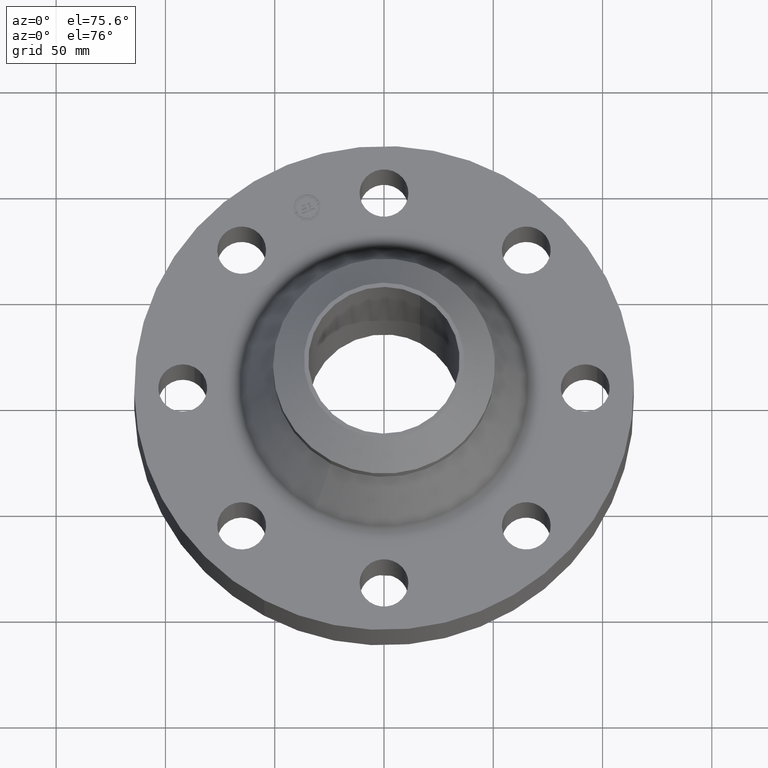
[diagram: clean part render]
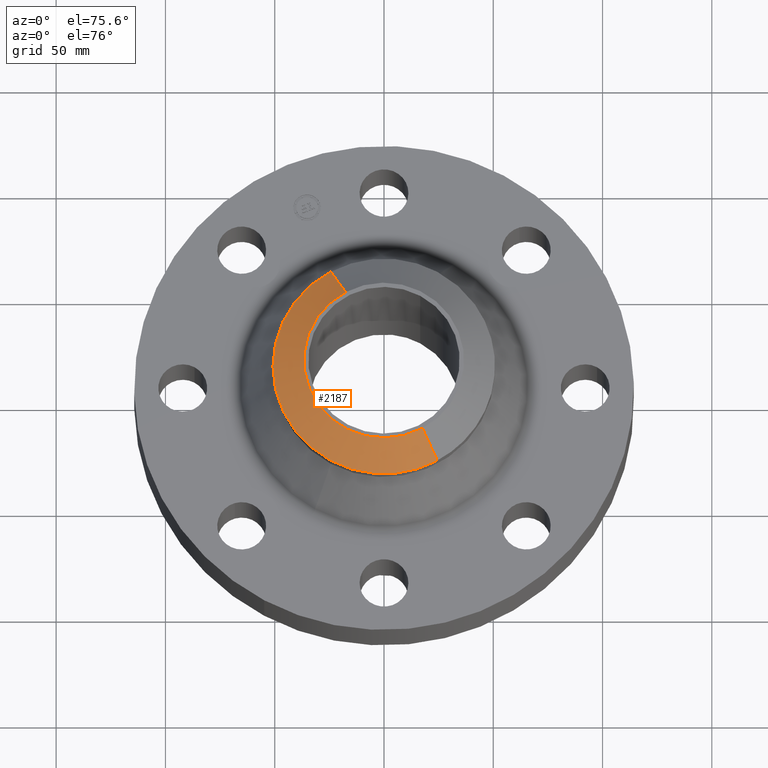
[diagram: same view with one face highlighted and labeled with its STEP entity id]
A machine part, auxiliary view. The second image highlights one B-rep face of the part: STEP entity #2187.
In plain terms, the highlighted conical surface has half-angle 52.5 deg.
Its self-contained STEP definition (entity closure, byte-faithful):
#1467=AXIS2_PLACEMENT_3D('Circle Axis2P3D',#1465,#1466,$) ;
#1518=AXIS2_PLACEMENT_3D('Circle Axis2P3D',#1516,#1517,$) ;
#2159=AXIS2_PLACEMENT_3D('Cone Axis2P3D',#2156,#2157,#2158) ;
#2170=AXIS2_PLACEMENT_3D('Circle Axis2P3D',#2168,#2169,$) ;
#1462=CARTESIAN_POINT('Vertex',(-0.958851077212,-1.75516512379,2.70239948352)) ;
#1465=CARTESIAN_POINT('Axis2P3D Location',(0.,0.,2.70239948352)) ;
#1469=CARTESIAN_POINT('Vertex',(-0.958851077212,1.75516512379,2.70239948352)) ;
#1513=CARTESIAN_POINT('Vertex',(0.958851077213,-1.75516512379,2.70239948353)) ;
#1516=CARTESIAN_POINT('Axis2P3D Location',(0.,0.,2.70239948352)) ;
#2156=CARTESIAN_POINT('Axis2P3D Location',(0.,0.,3.13000000001)) ;
#2161=CARTESIAN_POINT('Line Origine',(0.825268777142,-1.51064436367,2.91619974177)) ;
#2165=CARTESIAN_POINT('Vertex',(0.69168647707,-1.26612360355,3.13000000001)) ;
#2168=CARTESIAN_POINT('Axis2P3D Location',(0.,0.,3.13000000001)) ;
#2172=CARTESIAN_POINT('Vertex',(-0.691686477071,1.26612360355,3.13000000001)) ;
#2175=CARTESIAN_POINT('Line Origine',(-0.825268777142,1.51064436367,2.91619974177)) ;
#1466=DIRECTION('Axis2P3D Direction',(-0.,0.,-0.0393700787402)) ;
#1517=DIRECTION('Axis2P3D Direction',(-0.,0.,-0.0393700787402)) ;
#2157=DIRECTION('Axis2P3D Direction',(-0.,-0.,-0.0393700787402)) ;
#2158=DIRECTION('Axis2P3D XDirection',(0.0188750212049,-0.0345504945626,0.)) ;
#2162=DIRECTION('Vector Direction',(0.014974561121,-0.02741075027,-0.023966985394)) ;
#2169=DIRECTION('Axis2P3D Direction',(-0.,0.,-0.0393700787402)) ;
#2176=DIRECTION('Vector Direction',(-0.014974561121,0.02741075027,-0.023966985394)) ;
#2163=VECTOR('Line Direction',#2162,0.0393700787402) ;
#2177=VECTOR('Line Direction',#2176,0.0393700787402) ;
#2181=ORIENTED_EDGE('',*,*,#2167,.F.) ;
#2182=ORIENTED_EDGE('',*,*,#2174,.F.) ;
#2183=ORIENTED_EDGE('',*,*,#2179,.T.) ;
#2184=ORIENTED_EDGE('',*,*,#1471,.T.) ;
#2185=ORIENTED_EDGE('',*,*,#1520,.F.) ;
#2187=ADVANCED_FACE('PartBody',(#2186),#2160,.T.) ;
#1468=CIRCLE('generated circle',#1467,2.00000000001) ;
#1519=CIRCLE('generated circle',#1518,2.00000000001) ;
#2171=CIRCLE('generated circle',#2170,1.44274015749) ;
#2160=CONICAL_SURFACE('Cone',#2159,1.44274015749,0.916297857297) ;
#1471=EDGE_CURVE('',#1470,#1463,#1468,.F.) ;
#1520=EDGE_CURVE('',#1514,#1463,#1519,.T.) ;
#2167=EDGE_CURVE('',#2166,#1514,#2164,.T.) ;
#2174=EDGE_CURVE('',#2173,#2166,#2171,.F.) ;
#2179=EDGE_CURVE('',#2173,#1470,#2178,.T.) ;
#2180=EDGE_LOOP('',(#2181,#2182,#2183,#2184,#2185)) ;
#2186=FACE_OUTER_BOUND('',#2180,.T.) ;
#2164=LINE('Line',#2161,#2163) ;
#2178=LINE('Line',#2175,#2177) ;
#1463=VERTEX_POINT('',#1462) ;
#1470=VERTEX_POINT('',#1469) ;
#1514=VERTEX_POINT('',#1513) ;
#2166=VERTEX_POINT('',#2165) ;
#2173=VERTEX_POINT('',#2172) ;